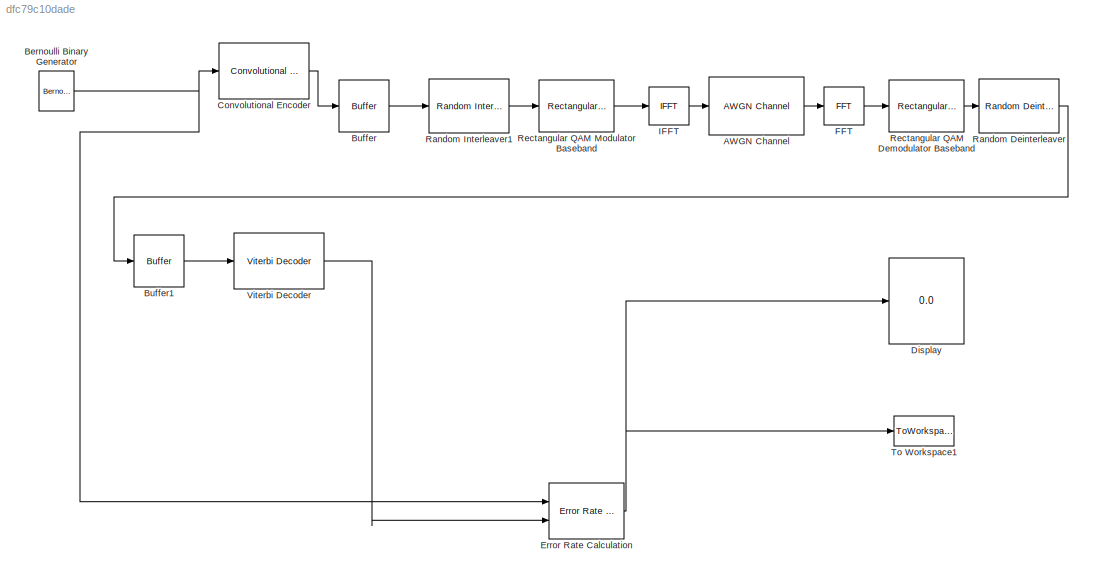
MODEL slx_dfc79c10dade
KIND model
CONFIG AbsTol = auto
CONFIG EnableMultiTasking = off
CONFIG FixedStep = auto
CONFIG MaxStep = auto
CONFIG MinStep = auto
CONFIG RelTol = 1e-3
CONFIG SampleTimeConstraint = Unconstrained
CONFIG Solver = VariableStepAuto
CONFIG SolverName = VariableStepAuto
CONFIG StartTime = 0.0
CONFIG StopTime = 10.0
BLOCK [Reference] AWGN Channel  REF=commchan3/AWGN
Channel
  Ports = [1, 1]
  SourceBlock = commchan3/AWGN\nChannel
  SourceProductBaseCode = CM
  SourceProductName = Communications System Toolbox
  SourceType = AWGN Channel
  UserDataPersistent = on
BLOCK [Reference] Bernoulli Binary Generator  REF=commrandsrc3/Bernoulli Binary
Generator
  Ports = [0, 1]
  SourceBlock = commrandsrc3/Bernoulli Binary\nGenerator
  SourceProductBaseCode = CM
  SourceProductName = Communications System Toolbox
  SourceType = Bernoulli Binary Generator
BLOCK [Buffer] Buffer
  N = 50
  OutputFrames = off
BLOCK [Buffer] Buffer1
  N = 50
  OutputFrames = off
BLOCK [Reference] Convolutional Encoder  REF=commcnvcod2/Convolutional
Encoder
  Ports = [1, 1]
  SourceBlock = commcnvcod2/Convolutional\nEncoder
  SourceProductBaseCode = CM
  SourceProductName = Communications System Toolbox
  SourceType = Convolutional Encoder
BLOCK [Display] Display
  Decimation = 1
  Ports = [1]
BLOCK [Reference] Error Rate Calculation  REF=commsink2/Error Rate
Calculation
  Ports = [2, 1]
  SourceBlock = commsink2/Error Rate\nCalculation
  SourceProductBaseCode = CM
  SourceProductName = Communications System Toolbox
  SourceType = Error Rate Calculation
BLOCK [Reference] FFT  REF=dspxfrm3/FFT
  Ports = [1, 1]
  SourceBlock = dspxfrm3/FFT
  SourceProductBaseCode = DS
  SourceProductName = DSP System Toolbox
  SourceType = FFT
BLOCK [Reference] IFFT  REF=dspxfrm3/IFFT
  Ports = [1, 1]
  SourceBlock = dspxfrm3/IFFT
  SourceProductBaseCode = DS
  SourceProductName = DSP System Toolbox
  SourceType = IFFT
BLOCK [Reference] Random Deinterleaver  REF=commblkintrlv2/Random
Deinterleaver
  Ports = [1, 1]
  SourceBlock = commblkintrlv2/Random\nDeinterleaver
  SourceProductBaseCode = CM
  SourceProductName = Communications System Toolbox
  SourceType = Random Deinterleaver
BLOCK [Reference] Random Interleaver1  REF=commblkintrlv2/Random
Interleaver
  Ports = [1, 1]
  SourceBlock = commblkintrlv2/Random\nInterleaver
  SourceProductBaseCode = CM
  SourceProductName = Communications System Toolbox
  SourceType = Random Interleaver
BLOCK [Reference] Rectangular QAM Demodulator Baseband  REF=commdigbbndam3/Rectangular QAM
Demodulator
Baseband
  Ports = [1, 1]
  SourceBlock = commdigbbndam3/Rectangular QAM\nDemodulator\nBaseband
  SourceProductBaseCode = CM
  SourceProductName = Communications System Toolbox
  SourceType = Rectangular QAM Demodulator Baseband
BLOCK [Reference] Rectangular QAM Modulator Baseband  REF=commdigbbndam3/Rectangular QAM
Modulator
Baseband
  Ports = [1, 1]
  SourceBlock = commdigbbndam3/Rectangular QAM\nModulator\nBaseband
  SourceProductBaseCode = CM
  SourceProductName = Communications System Toolbox
  SourceType = Rectangular QAM Modulator Baseband
BLOCK [ToWorkspace] To Workspace1
  FixptAsFi = on
  MaxDataPoints = inf
  Ports = [1]
  SampleTime = -1
  Save2DSignal = 2-D array (concatenate along first dimension)
  VariableName = ber
BLOCK [Reference] Viterbi Decoder  REF=commcnvcod2/Viterbi Decoder
  Ports = [1, 1]
  SourceBlock = commcnvcod2/Viterbi Decoder
  SourceProductBaseCode = CM
  SourceProductName = Communications System Toolbox
  SourceType = Viterbi Decoder
LINE AWGN Channel:1 -> FFT:1
NET Bernoulli Binary Generator:1 -> Convolutional Encoder:1, Error Rate Calculation:1
LINE Buffer1:1 -> Viterbi Decoder:1
LINE Buffer:1 -> Random Interleaver1:1
LINE Convolutional Encoder:1 -> Buffer:1
NET Error Rate Calculation:1 -> Display:1, To Workspace1:1
LINE FFT:1 -> Rectangular QAM Demodulator Baseband:1
LINE IFFT:1 -> AWGN Channel:1
LINE Random Deinterleaver:1 -> Buffer1:1
LINE Random Interleaver1:1 -> Rectangular QAM Modulator Baseband:1
LINE Rectangular QAM Demodulator Baseband:1 -> Random Deinterleaver:1
LINE Rectangular QAM Modulator Baseband:1 -> IFFT:1
LINE Viterbi Decoder:1 -> Error Rate Calculation:2
note: NET lines group one-source signal fan-out (src -> all destinations, sorted); 1:1 wires keep LINE
